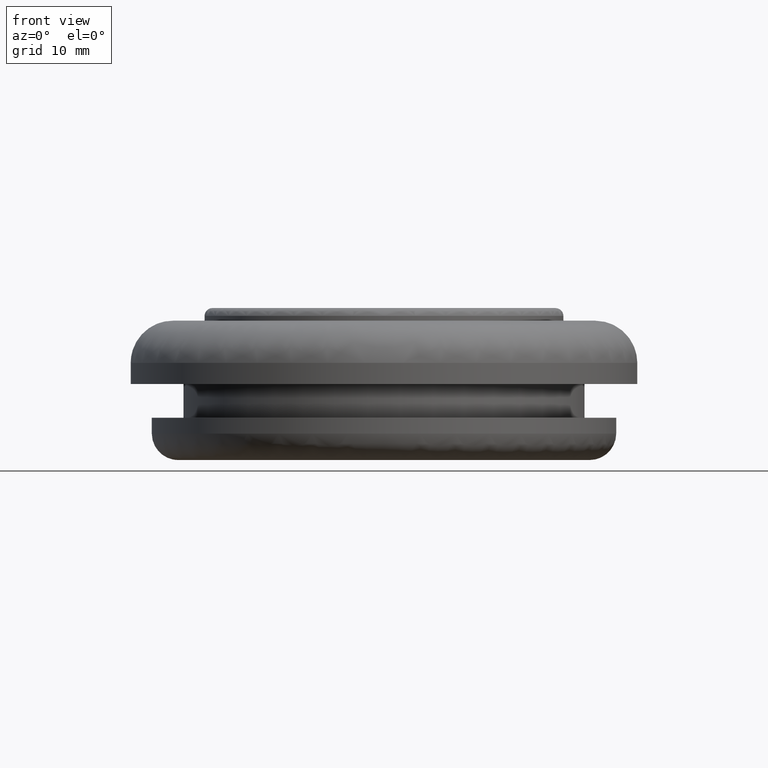
[diagram: clean part render]
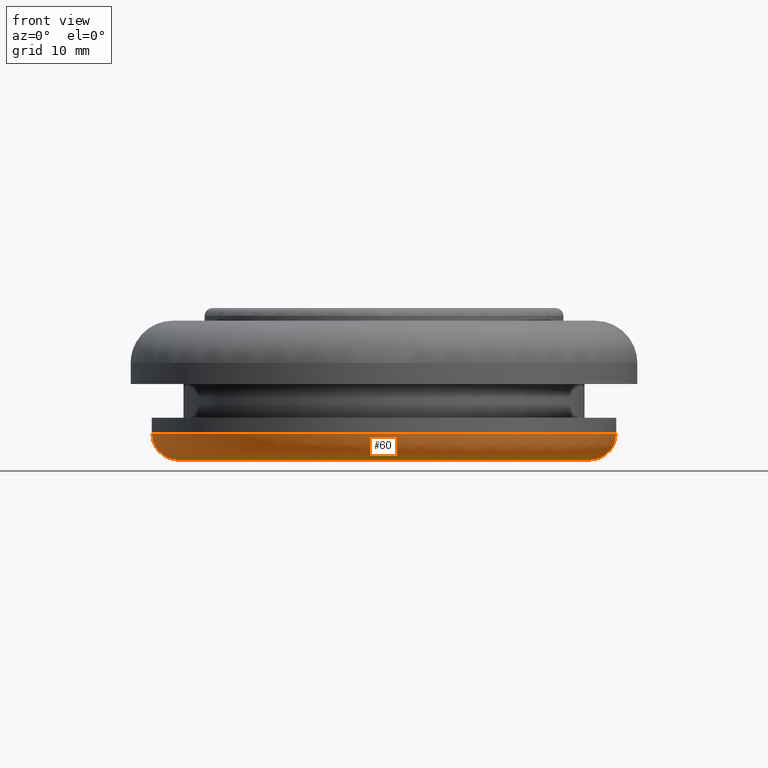
[diagram: same view with one face highlighted and labeled with its STEP entity id]
A machine part, front view. The second image highlights one B-rep face of the part: STEP entity #60.
In plain terms, the highlighted face is a freeform B-spline surface patch.
Its self-contained STEP definition (entity closure, byte-faithful):
#60=ADVANCED_FACE('',(#273),#272,.T.);
#272=( BOUNDED_SURFACE() B_SPLINE_SURFACE( 2,2,((#552,#553,#554,#555,#556),(#557,#558,#559,#560,#561),(#562,#563,#564,#565,#566),(#567,#568,#569,#570,#571),(#572,#573,#574,#575,#576)), .UNSPECIFIED.,.F.,.F.,.F.) B_SPLINE_SURFACE_WITH_KNOTS((3,2,3),(3,2,3),(0.00000000000E+000,5.00000000000E-001,1.00000000000E+000),(0.00000000000E+000,5.00000000000E-001,1.00000000000E+000), .UNSPECIFIED. ) GEOMETRIC_REPRESENTATION_ITEM() RATIONAL_B_SPLINE_SURFACE(((1.00000000000E+000,7.07106781186E-001,1.00000000000E+000,7.07106781186E-001,1.00000000000E+000),(7.07106781187E-001,5.00000000000E-001,7.07106781187E-001,5.00000000000E-001,7.07106781187E-001),(1.00000000000E+000,7.07106781186E-001,1.00000000000E+000,7.07106781186E-001,1.00000000000E+000),(7.07106781187E-001,5.00000000000E-001,7.07106781187E-001,5.00000000000E-001,7.07106781187E-001),(1.00000000000E+000,7.07106781186E-001,1.00000000000E+000,7.07106781186E-001,1.00000000000E+000))) REPRESENTATION_ITEM('') SURFACE() );
#273=FACE_OUTER_BOUND('',#577,.T.);
#552=CARTESIAN_POINT('',(2.20000000000E+001,-6.66313404073E-015,2.50000000000E+000));
#553=CARTESIAN_POINT('',(2.20000000000E+001,-5.22873177178E-014,-6.57240703205E-013));
#554=CARTESIAN_POINT('',(1.95000000000E+001,-4.80120871986E-014,-9.94759830064E-014));
#555=CARTESIAN_POINT('',(1.70000000000E+001,-4.37368566794E-014,4.58152979444E-013));
#556=CARTESIAN_POINT('',(1.70000000000E+001,1.88732699762E-015,2.50000000000E+000));
#557=CARTESIAN_POINT('',(2.20000000000E+001,-2.20000000000E+001,2.50000000000E+000));
#558=CARTESIAN_POINT('',(2.20000000000E+001,-2.20000000000E+001,-2.55784057501E-013));
#559=CARTESIAN_POINT('',(1.95000000000E+001,-1.95000000000E+001,2.56620986623E-013));
#560=CARTESIAN_POINT('',(1.70000000000E+001,-1.70000000000E+001,7.68571337129E-013));
#561=CARTESIAN_POINT('',(1.70000000000E+001,-1.70000000000E+001,2.50000000000E+000));
#562=CARTESIAN_POINT('',(-3.62749170896E-014,-2.20000000000E+001,2.50000000000E+000));
#563=CARTESIAN_POINT('',(-3.62749170896E-014,-2.20000000000E+001,-2.55611052274E-013));
#564=CARTESIAN_POINT('',(-3.21527674203E-014,-1.95000000000E+001,2.56239474083E-013));
#565=CARTESIAN_POINT('',(-2.80306177511E-014,-1.70000000000E+001,7.68403249280E-013));
#566=CARTESIAN_POINT('',(-2.80306177511E-014,-1.70000000000E+001,2.50000000000E+000));
#567=CARTESIAN_POINT('',(-2.20000000000E+001,-2.20000000000E+001,2.50000000000E+000));
#568=CARTESIAN_POINT('',(-2.20000000000E+001,-2.20000000000E+001,-2.55784057501E-013));
#569=CARTESIAN_POINT('',(-1.95000000000E+001,-1.95000000000E+001,2.56620986623E-013));
#570=CARTESIAN_POINT('',(-1.70000000000E+001,-1.70000000000E+001,7.68571337129E-013));
#571=CARTESIAN_POINT('',(-1.70000000000E+001,-1.70000000000E+001,2.50000000000E+000));
#572=CARTESIAN_POINT('',(-2.20000000000E+001,6.58867001385E-014,2.50000000000E+000));
#573=CARTESIAN_POINT('',(-2.20000000000E+001,2.02625164614E-014,-6.57240703205E-013));
#574=CARTESIAN_POINT('',(-1.95000000000E+001,1.62934476421E-014,-9.94759830064E-014));
#575=CARTESIAN_POINT('',(-1.70000000000E+001,1.23243788227E-014,4.58152979444E-013));
#576=CARTESIAN_POINT('',(-1.70000000000E+001,5.79485624998E-014,2.50000000000E+000));
#577=EDGE_LOOP('',(#726,#727,#728,#729));
#726=ORIENTED_EDGE('',*,*,#797,.T.);
#727=ORIENTED_EDGE('',*,*,#798,.T.);
#728=ORIENTED_EDGE('',*,*,#758,.F.);
#729=ORIENTED_EDGE('',*,*,#799,.F.);
#758=EDGE_CURVE('',#834,#835,#836,.T.);
#797=EDGE_CURVE('',#1077,#1076,#1096,.T.);
#798=EDGE_CURVE('',#1076,#835,#1102,.T.);
#799=EDGE_CURVE('',#1077,#834,#1108,.T.);
#834=VERTEX_POINT('',#1170);
#835=VERTEX_POINT('',#1171);
#836=CIRCLE('',#1175,1.95000000000E+001);
#1076=VERTEX_POINT('',#1327);
#1077=VERTEX_POINT('',#1328);
#1096=CIRCLE('',#1340,2.20000000000E+001);
#1102=(BOUNDED_CURVE() B_SPLINE_CURVE(2,(#1341,#1342,#1343),.UNSPECIFIED.,.F.,.F.) B_SPLINE_CURVE_WITH_KNOTS((3,3),(0.00000000000E+000,5.00000000000E-001),.UNSPECIFIED.) CURVE() GEOMETRIC_REPRESENTATION_ITEM() RATIONAL_B_SPLINE_CURVE((1.00000000000E+000,7.07106781186E-001,1.00000000000E+000)) REPRESENTATION_ITEM('') );
#1108=(BOUNDED_CURVE() B_SPLINE_CURVE(3,(#1344,#1345,#1346,#1347,#1348),.UNSPECIFIED.,.F.,.F.) B_SPLINE_CURVE_WITH_KNOTS((4,1,4),(0.00000000000E+000,2.50000001665E-001,5.00000002891E-001),.UNSPECIFIED.) CURVE() GEOMETRIC_REPRESENTATION_ITEM() RATIONAL_B_SPLINE_CURVE((1.00000000000E+000,1.00000000000E+000,1.00000000000E+000,1.00000000000E+000,1.00000000000E+000)) REPRESENTATION_ITEM('') );
#1170=CARTESIAN_POINT('',(1.95000000000E+001,2.38798238995E-015,-9.94759830064E-014));
#1171=CARTESIAN_POINT('',(-1.95000000000E+001,1.53950926081E-014,-9.94759830064E-014));
#1172=CARTESIAN_POINT('',(0.00000000000E+000,0.00000000000E+000,-9.94759830064E-014));
#1173=DIRECTION('',(0.00000000000E+000,0.00000000000E+000,-1.00000000000E+000));
#1174=DIRECTION('',(1.00000000000E+000,-0.00000000000E+000,-0.00000000000E+000));
#1175=AXIS2_PLACEMENT_3D('',#1172,#1173,#1174);
#1327=CARTESIAN_POINT('',(-2.20000000000E+001,-3.87837187134E-015,2.50000000000E+000));
#1328=CARTESIAN_POINT('',(2.20000000000E+001,0.00000000000E+000,2.50000000000E+000));
#1337=CARTESIAN_POINT('',(0.00000000000E+000,0.00000000000E+000,2.50000000000E+000));
#1338=DIRECTION('',(0.00000000000E+000,0.00000000000E+000,-1.00000000000E+000));
#1339=DIRECTION('',(-1.00000000000E+000,-5.38289951332E-017,-0.00000000000E+000));
#1340=AXIS2_PLACEMENT_3D('',#1337,#1338,#1339);
#1341=CARTESIAN_POINT('',(-2.20000000000E+001,7.12751460548E-014,2.50000000000E+000));
#1342=CARTESIAN_POINT('',(-2.20000000000E+001,2.56509623777E-014,-6.57240703205E-013));
#1343=CARTESIAN_POINT('',(-1.95000000000E+001,2.10695701587E-014,-9.94759830064E-014));
#1344=CARTESIAN_POINT('',(2.20000000000E+001,-9.47390314347E-015,2.50000000000E+000));
#1345=CARTESIAN_POINT('',(2.20055601483E+001,-2.15837936518E-014,1.85137389675E+000));
#1346=CARTESIAN_POINT('',(2.14584407757E+001,-4.48806835518E-014,5.41559207146E-001));
#1347=CARTESIAN_POINT('',(2.01486260816E+001,-5.23705169508E-014,-5.56015351374E-003));
#1348=CARTESIAN_POINT('',(1.94999999796E+001,-5.09222293632E-014,-9.93924255245E-014));